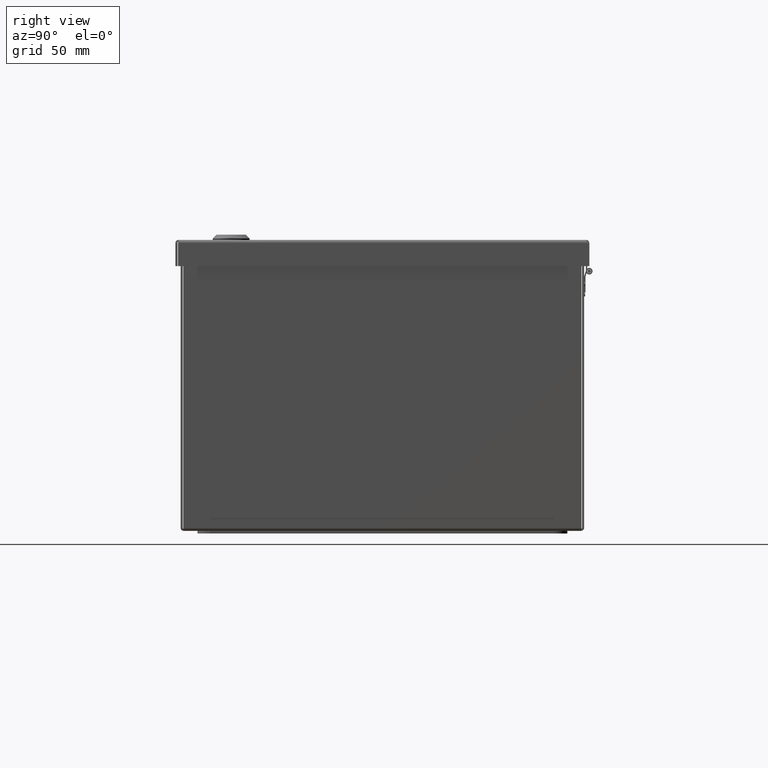
[diagram: clean part render]
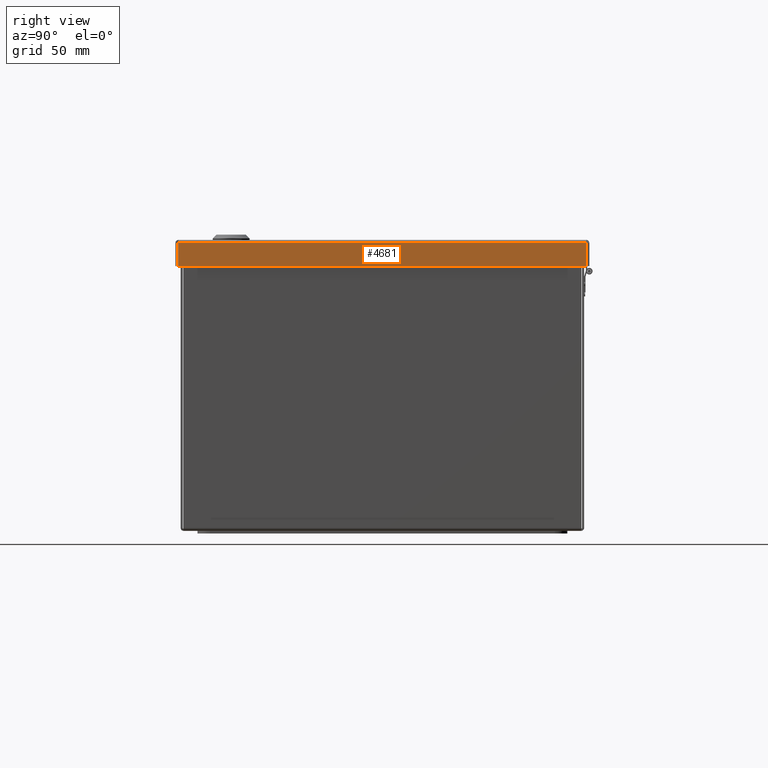
[diagram: same view with one face highlighted and labeled with its STEP entity id]
A machine part, right view. The second image highlights one B-rep face of the part: STEP entity #4681.
In plain terms, the highlighted planar face has unit normal (-1, 0, -0).
Its self-contained STEP definition (entity closure, byte-faithful):
#525 = DIRECTION ( 'NONE',  ( -4.301970607913820120E-16, -1.439844222346570076E-15, 1.000000000000000000 ) ) ;
#1272 = VERTEX_POINT ( 'NONE', #8674 ) ;
#1454 = CARTESIAN_POINT ( 'NONE',  ( 4.154999999999967386, 4.079957864376278387, 2.562499999999988898 ) ) ;
#3062 = VERTEX_POINT ( 'NONE', #1454 ) ;
#4681 = ADVANCED_FACE ( 'NONE', ( #32833 ), #15870, .F. ) ;
#5133 = CARTESIAN_POINT ( 'NONE',  ( 4.154999999999946070, -1.998899999999988797, 2.951370783710308032 ) ) ;
#6025 = VECTOR ( 'NONE', #26357, 39.37007874015748143 ) ;
#7708 = CARTESIAN_POINT ( 'NONE',  ( 4.154999999999924754, -8.077757864376289731, 3.249249999999971550 ) ) ;
#8651 = LINE ( 'NONE', #12063, #6025 ) ;
#8674 = CARTESIAN_POINT ( 'NONE',  ( 4.154999999999967386, 4.079957864376275722, 3.249249999999989313 ) ) ;
#11360 = CARTESIAN_POINT ( 'NONE',  ( 4.154999999999924754, -8.077757864376287955, 2.562499999999971578 ) ) ;
#12063 = CARTESIAN_POINT ( 'NONE',  ( 4.154999999999967386, 4.079957864376278387, 2.562499999999988898 ) ) ;
#12192 = LINE ( 'NONE', #35345, #13836 ) ;
#12318 = EDGE_LOOP ( 'NONE', ( #14290, #22187, #17345, #21539 ) ) ;
#13103 = VECTOR ( 'NONE', #525, 39.37007874015748143 ) ;
#13836 = VECTOR ( 'NONE', #35774, 39.37007874015748143 ) ;
#14083 = CARTESIAN_POINT ( 'NONE',  ( 4.154999999999924754, -8.077757864376287955, 2.562499999999971578 ) ) ;
#14154 = AXIS2_PLACEMENT_3D ( 'NONE', #5133, #43039, #39629 ) ;
#14290 = ORIENTED_EDGE ( 'NONE', *, *, #34554, .F. ) ;
#15870 = PLANE ( 'NONE',  #14154 ) ;
#16235 = DIRECTION ( 'NONE',  ( 4.301970607913820120E-16, 1.439844222346570076E-15, -1.000000000000000000 ) ) ;
#17345 = ORIENTED_EDGE ( 'NONE', *, *, #31270, .F. ) ;
#19387 = CARTESIAN_POINT ( 'NONE',  ( 4.154999999999967386, 4.079957864376275722, 3.249249999999988869 ) ) ;
#20200 = EDGE_CURVE ( 'NONE', #3062, #32882, #8651, .T. ) ;
#21539 = ORIENTED_EDGE ( 'NONE', *, *, #29036, .F. ) ;
#22187 = ORIENTED_EDGE ( 'NONE', *, *, #20200, .F. ) ;
#24113 = VECTOR ( 'NONE', #16235, 39.37007874015748143 ) ;
#26357 = DIRECTION ( 'NONE',  ( -3.467805156133699936E-15, -1.000000000000000000, -1.439844222346571654E-15 ) ) ;
#29036 = EDGE_CURVE ( 'NONE', #38637, #1272, #12192, .T. ) ;
#31270 = EDGE_CURVE ( 'NONE', #1272, #3062, #42193, .T. ) ;
#32322 = LINE ( 'NONE', #14083, #13103 ) ;
#32833 = FACE_OUTER_BOUND ( 'NONE', #12318, .T. ) ;
#32882 = VERTEX_POINT ( 'NONE', #11360 ) ;
#34554 = EDGE_CURVE ( 'NONE', #32882, #38637, #32322, .T. ) ;
#35345 = CARTESIAN_POINT ( 'NONE',  ( 4.154999999999946070, -1.998899999999989907, 3.249249999999980432 ) ) ;
#35774 = DIRECTION ( 'NONE',  ( 3.467805156133699936E-15, 1.000000000000000000, 1.439844222346571654E-15 ) ) ;
#38637 = VERTEX_POINT ( 'NONE', #7708 ) ;
#39629 = DIRECTION ( 'NONE',  ( 7.134740056737809927E-16, 1.439844222346569090E-15, -1.000000000000000000 ) ) ;
#42193 = LINE ( 'NONE', #19387, #24113 ) ;
#43039 = DIRECTION ( 'NONE',  ( -1.000000000000000000, 3.467805156133701120E-15, -7.134740056737759637E-16 ) ) ;